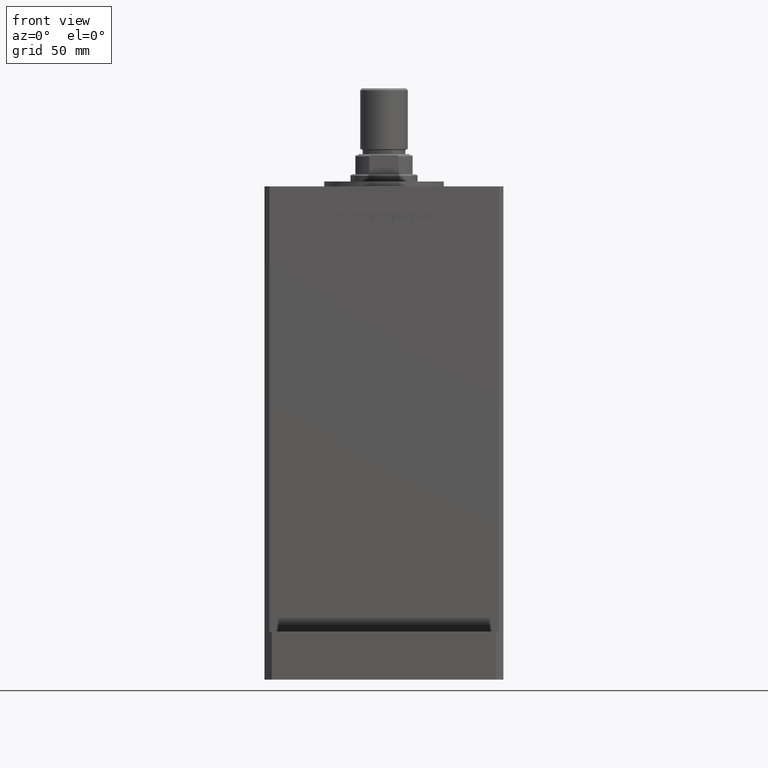
[diagram: clean part render]
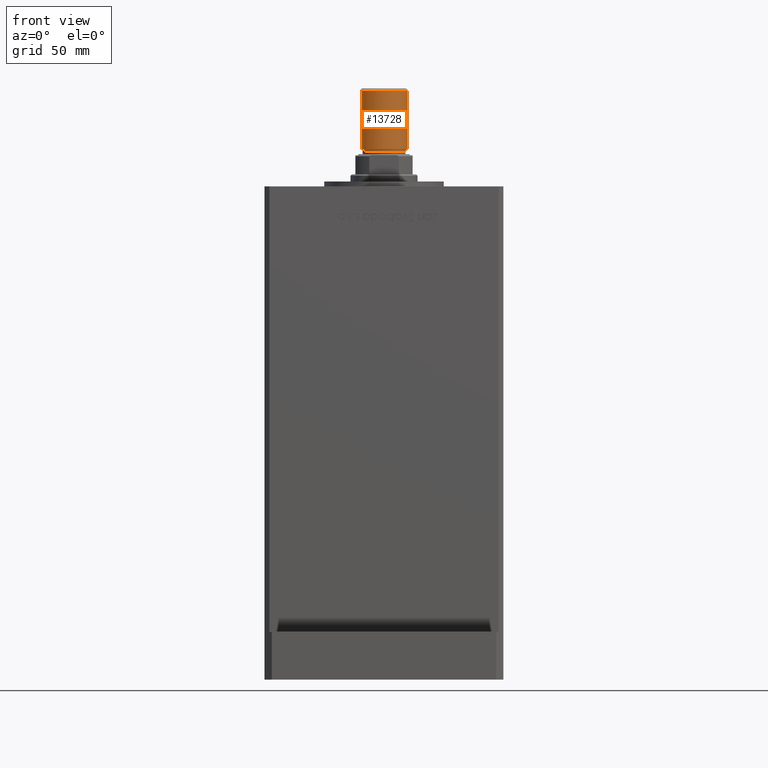
[diagram: same view with one face highlighted and labeled with its STEP entity id]
A machine part, front view. The second image highlights one B-rep face of the part: STEP entity #13728.
In plain terms, the highlighted cylindrical surface (edge-blend (fillet) strip) has radius 10 mm, axis along (0, 0, 1).
Its self-contained STEP definition (entity closure, byte-faithful):
#1060 = EDGE_CURVE ( 'NONE', #7568, #6984, #30238, .T. ) ;
#2046 = EDGE_CURVE ( 'NONE', #11681, #2931, #27518, .T. ) ;
#2931 = VERTEX_POINT ( 'NONE', #40668 ) ;
#6227 = DIRECTION ( 'NONE',  ( 0.000000000000000000, 0.000000000000000000, 1.000000000000000000 ) ) ;
#6403 = DIRECTION ( 'NONE',  ( 1.000000000000000000, 0.000000000000000000, 0.000000000000000000 ) ) ;
#6815 = EDGE_LOOP ( 'NONE', ( #31255, #51328, #43994, #23517 ) ) ;
#6984 = VERTEX_POINT ( 'NONE', #13674 ) ;
#7568 = VERTEX_POINT ( 'NONE', #32487 ) ;
#11681 = VERTEX_POINT ( 'NONE', #49724 ) ;
#12504 = VECTOR ( 'NONE', #30512, 1000.000000000000000 ) ;
#13340 = CYLINDRICAL_SURFACE ( 'NONE', #38860, 10.00000000000000000 ) ;
#13674 = CARTESIAN_POINT ( 'NONE',  ( -10.00000000000000000, 0.000000000000000000, 0.7999999999999986011 ) ) ;
#13728 = ADVANCED_FACE ( 'NONE', ( #42921 ), #13340, .T. ) ;
#14430 = CARTESIAN_POINT ( 'NONE',  ( 0.000000000000000000, 0.000000000000000000, 25.50000000000000000 ) ) ;
#16636 = DIRECTION ( 'NONE',  ( -1.000000000000000000, 0.000000000000000000, 0.000000000000000000 ) ) ;
#17360 = CARTESIAN_POINT ( 'NONE',  ( -10.00000000000000000, 0.000000000000000000, 25.50000000000000000 ) ) ;
#19087 = AXIS2_PLACEMENT_3D ( 'NONE', #14430, #6227, #39361 ) ;
#21718 = CIRCLE ( 'NONE', #19087, 10.00000000000000000 ) ;
#23517 = ORIENTED_EDGE ( 'NONE', *, *, #32719, .T. ) ;
#27518 = LINE ( 'NONE', #32450, #47211 ) ;
#28014 = DIRECTION ( 'NONE',  ( -0.000000000000000000, -0.000000000000000000, 1.000000000000000000 ) ) ;
#28281 = CARTESIAN_POINT ( 'NONE',  ( 0.000000000000000000, 0.000000000000000000, 0.7999999999999986011 ) ) ;
#28857 = EDGE_CURVE ( 'NONE', #7568, #11681, #21718, .T. ) ;
#30238 = LINE ( 'NONE', #17360, #12504 ) ;
#30512 = DIRECTION ( 'NONE',  ( -0.000000000000000000, -0.000000000000000000, -1.000000000000000000 ) ) ;
#31255 = ORIENTED_EDGE ( 'NONE', *, *, #2046, .F. ) ;
#31635 = DIRECTION ( 'NONE',  ( -0.000000000000000000, -0.000000000000000000, -1.000000000000000000 ) ) ;
#32450 = CARTESIAN_POINT ( 'NONE',  ( 10.00000000000000000, 1.224646799147353256E-15, 25.50000000000000000 ) ) ;
#32487 = CARTESIAN_POINT ( 'NONE',  ( -10.00000000000000000, 0.000000000000000000, 25.50000000000000000 ) ) ;
#32719 = EDGE_CURVE ( 'NONE', #6984, #2931, #52560, .T. ) ;
#34435 = DIRECTION ( 'NONE',  ( -0.000000000000000000, -0.000000000000000000, -1.000000000000000000 ) ) ;
#38860 = AXIS2_PLACEMENT_3D ( 'NONE', #46220, #34435, #16636 ) ;
#39361 = DIRECTION ( 'NONE',  ( 1.000000000000000000, 0.000000000000000000, 0.000000000000000000 ) ) ;
#40668 = CARTESIAN_POINT ( 'NONE',  ( 10.00000000000000000, 1.224646799147353256E-15, 0.7999999999999986011 ) ) ;
#41178 = AXIS2_PLACEMENT_3D ( 'NONE', #28281, #28014, #6403 ) ;
#42921 = FACE_OUTER_BOUND ( 'NONE', #6815, .T. ) ;
#43994 = ORIENTED_EDGE ( 'NONE', *, *, #1060, .T. ) ;
#46220 = CARTESIAN_POINT ( 'NONE',  ( 0.000000000000000000, 0.000000000000000000, 25.50000000000000000 ) ) ;
#47211 = VECTOR ( 'NONE', #31635, 1000.000000000000000 ) ;
#49724 = CARTESIAN_POINT ( 'NONE',  ( 10.00000000000000000, 1.224646799147353256E-15, 25.50000000000000000 ) ) ;
#51328 = ORIENTED_EDGE ( 'NONE', *, *, #28857, .F. ) ;
#52560 = CIRCLE ( 'NONE', #41178, 10.00000000000000000 ) ;